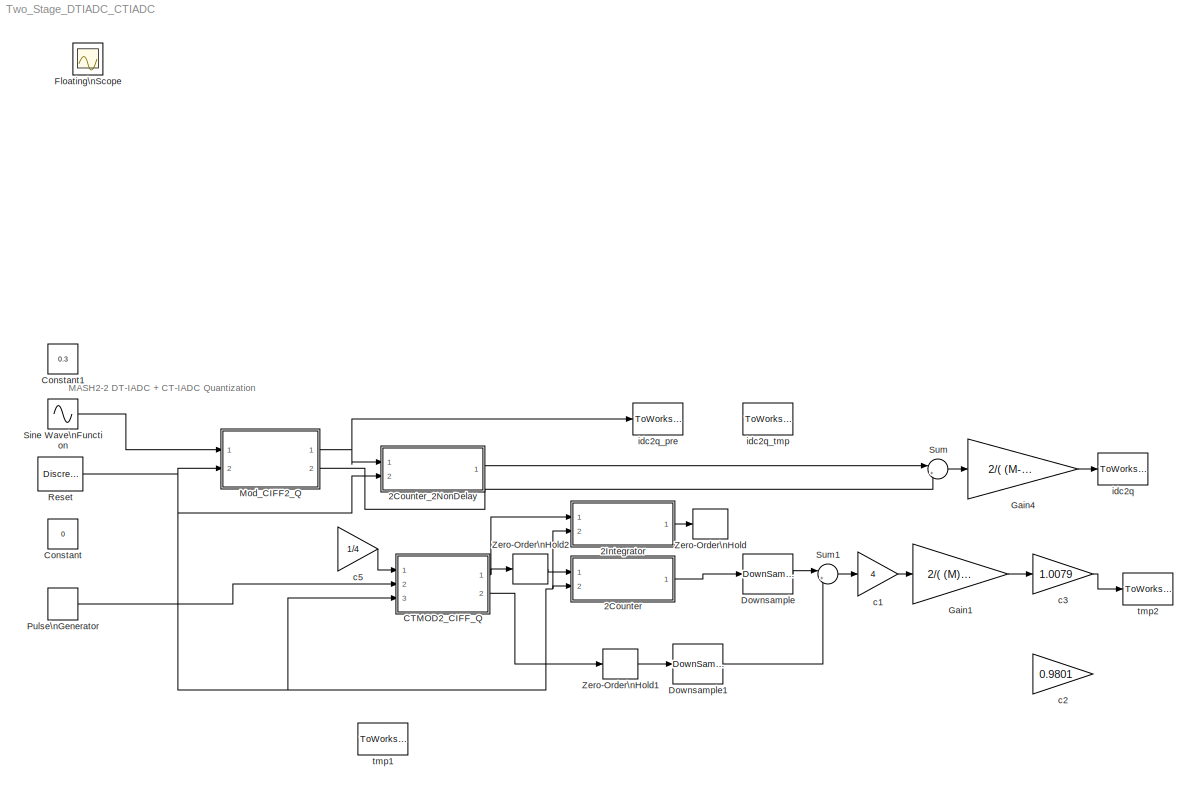
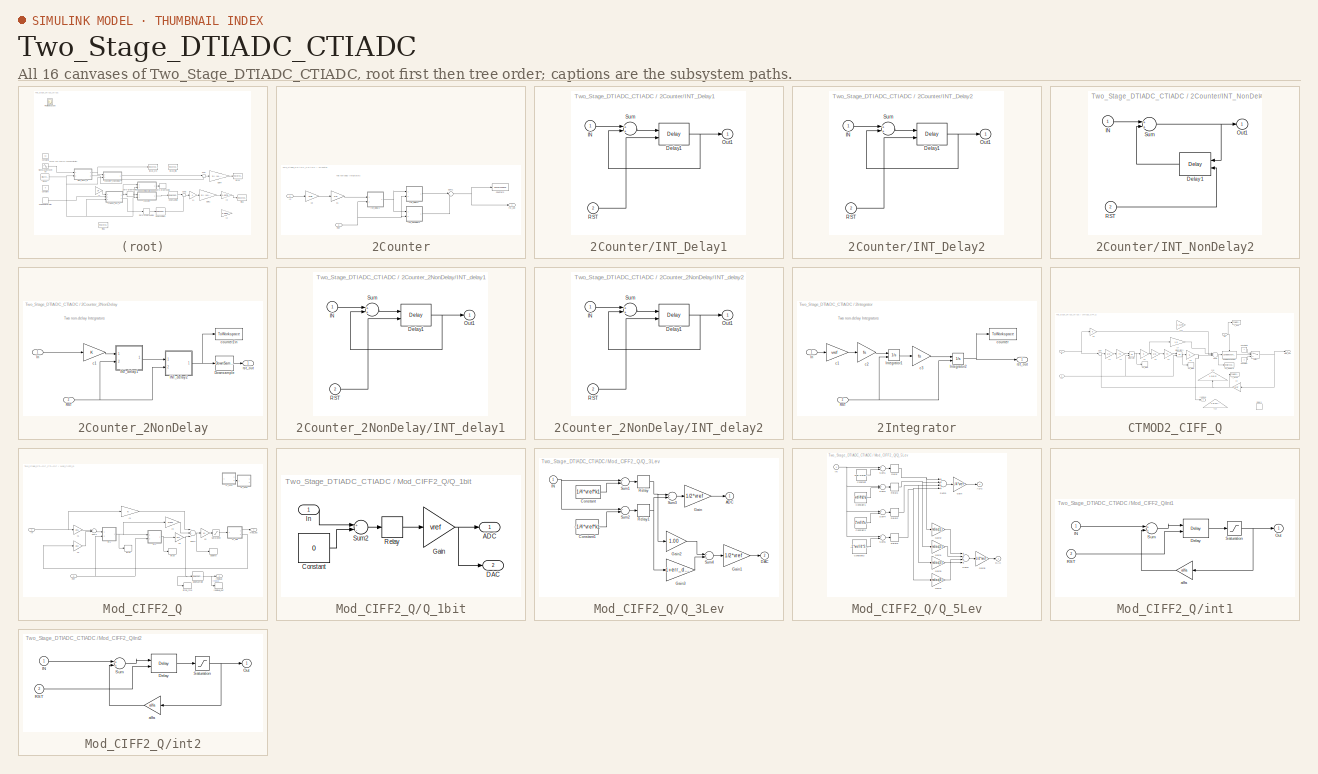
[diagram: thumbnail index - all 16 canvases of the model, root first then tree order]
MODEL Two_Stage_DTIADC_CTIADC
KIND model
BLOCK [SubSystem] 2Counter
  Ports = [2, 1]
  RequestExecContextInheritance = off
  SID = 12904
BLOCK [SubSystem] 2Counter/INT_Delay1
  Ports = [2, 1]
  RequestExecContextInheritance = off
  SID = 12978
BLOCK [Delay] 2Counter/INT_Delay1/Delay1
  DelayLength = 1
  ExternalReset = Rising
  InitialCondition = 0
  InputPortMap = u0,r5
  Ports = [2, 1]
  SID = 12981
  UserData = DataTag0
  UserDataPersistent = on
BLOCK [Inport] 2Counter/INT_Delay1/IN
  IconDisplay = Port number
  SID = 12979
BLOCK [Outport] 2Counter/INT_Delay1/Out1
  IconDisplay = Port number
  SID = 12983
  VectorParamsAs1DForOutWhenUnconnected = off
BLOCK [Inport] 2Counter/INT_Delay1/RST
  IconDisplay = Port number
  Port = 2
  SID = 12980
BLOCK [Sum] 2Counter/INT_Delay1/Sum
  Ports = [2, 1]
  SID = 12982
BLOCK [SubSystem] 2Counter/INT_Delay2
  Ports = [2, 1]
  RequestExecContextInheritance = off
  SID = 12913
BLOCK [Delay] 2Counter/INT_Delay2/Delay1
  DelayLength = 1
  ExternalReset = Rising
  InitialCondition = 0
  InputPortMap = u0,r5
  Ports = [2, 1]
  SID = 12916
  UserData = DataTag1
  UserDataPersistent = on
BLOCK [Inport] 2Counter/INT_Delay2/IN
  IconDisplay = Port number
  SID = 12914
BLOCK [Outport] 2Counter/INT_Delay2/Out1
  IconDisplay = Port number
  SID = 12918
  VectorParamsAs1DForOutWhenUnconnected = off
BLOCK [Inport] 2Counter/INT_Delay2/RST
  IconDisplay = Port number
  Port = 2
  SID = 12915
BLOCK [Sum] 2Counter/INT_Delay2/Sum
  Ports = [2, 1]
  SID = 12917
BLOCK [SubSystem] 2Counter/INT_NonDelay2
  Ports = [2, 1]
  RequestExecContextInheritance = off
  SID = 12919
BLOCK [Delay] 2Counter/INT_NonDelay2/Delay1
  DelayLength = 1
  ExternalReset = Rising
  InitialCondition = 0
  InputPortMap = u0,r5
  Ports = [2, 1]
  SID = 12922
  UserData = DataTag2
  UserDataPersistent = on
BLOCK [Inport] 2Counter/INT_NonDelay2/IN
  IconDisplay = Port number
  SID = 12920
BLOCK [Outport] 2Counter/INT_NonDelay2/Out1
  IconDisplay = Port number
  SID = 12924
  VectorParamsAs1DForOutWhenUnconnected = off
BLOCK [Inport] 2Counter/INT_NonDelay2/RST
  IconDisplay = Port number
  Port = 2
  SID = 12921
BLOCK [Sum] 2Counter/INT_NonDelay2/Sum
  Ports = [2, 1]
  SID = 12923
BLOCK [Inport] 2Counter/In
  IconDisplay = Port number
  SID = 12905
BLOCK [Inport] 2Counter/RST
  IconDisplay = Port number
  Port = 2
  SID = 12906
BLOCK [Sum] 2Counter/Sum1
  IconShape = round
  InputSameDT = off
  Inputs = |++
  OutDataTypeStr = Inherit: Inherit via internal rule
  Ports = [2, 1]
  SID = 12925
  SaturateOnIntegerOverflow = off
BLOCK [Gain] 2Counter/c1
  Gain = 0.5
  SID = 12926
BLOCK [Gain] 2Counter/c2
  Gain = vref
  SID = 12927
BLOCK [ToWorkspace] 2Counter/counter2
  MaxDataPoints = inf
  Ports = [1]
  SID = 12928
  SampleTime = -1
  VariableName = counter2
BLOCK [Outport] 2Counter/rst_out
  IconDisplay = Port number
  SID = 12929
  VectorParamsAs1DForOutWhenUnconnected = off
BLOCK [SubSystem] 2Counter_2NonDelay
  Ports = [2, 1]
  RequestExecContextInheritance = off
  SID = 12296
BLOCK [DownSample] 2Counter_2NonDelay/Downsample
  InputProcessing = Elements as channels (sample based)
  N = OSR
  RateOptions = Allow multirate processing
  SID = 12299
  phase = OSR-1
BLOCK [SubSystem] 2Counter_2NonDelay/INT_delay1
  Ports = [2, 1]
  RequestExecContextInheritance = off
  SID = 12872
BLOCK [Delay] 2Counter_2NonDelay/INT_delay1/Delay1
  DelayLength = 1
  ExternalReset = Rising
  InitialCondition = 0
  InputPortMap = u0,r5
  Ports = [2, 1]
  SID = 12875
  UserData = DataTag3
  UserDataPersistent = on
BLOCK [Inport] 2Counter_2NonDelay/INT_delay1/IN
  IconDisplay = Port number
  SID = 12873
BLOCK [Outport] 2Counter_2NonDelay/INT_delay1/Out1
  IconDisplay = Port number
  SID = 12877
  VectorParamsAs1DForOutWhenUnconnected = off
BLOCK [Inport] 2Counter_2NonDelay/INT_delay1/RST
  IconDisplay = Port number
  Port = 2
  SID = 12874
BLOCK [Sum] 2Counter_2NonDelay/INT_delay1/Sum
  Ports = [2, 1]
  SID = 12876
BLOCK [SubSystem] 2Counter_2NonDelay/INT_delay2
  Ports = [2, 1]
  RequestExecContextInheritance = off
  SID = 12306
BLOCK [Delay] 2Counter_2NonDelay/INT_delay2/Delay1
  DelayLength = 1
  ExternalReset = Rising
  InitialCondition = 0
  InputPortMap = u0,r5
  Ports = [2, 1]
  SID = 12712
  UserData = DataTag4
  UserDataPersistent = on
BLOCK [Inport] 2Counter_2NonDelay/INT_delay2/IN
  IconDisplay = Port number
  SID = 12307
BLOCK [Outport] 2Counter_2NonDelay/INT_delay2/Out1
  IconDisplay = Port number
  SID = 12311
  VectorParamsAs1DForOutWhenUnconnected = off
BLOCK [Inport] 2Counter_2NonDelay/INT_delay2/RST
  IconDisplay = Port number
  Port = 2
  SID = 12308
BLOCK [Sum] 2Counter_2NonDelay/INT_delay2/Sum
  Ports = [2, 1]
  SID = 12310
BLOCK [Inport] 2Counter_2NonDelay/In
  IconDisplay = Port number
  SID = 12297
BLOCK [Inport] 2Counter_2NonDelay/RST
  IconDisplay = Port number
  Port = 2
  SID = 12298
BLOCK [Gain] 2Counter_2NonDelay/c1
  SID = 12312
BLOCK [ToWorkspace] 2Counter_2NonDelay/counter1\n
  MaxDataPoints = inf
  Ports = [1]
  SID = 12616
  SampleTime = -1
  VariableName = counter1
BLOCK [Outport] 2Counter_2NonDelay/rst_out
  IconDisplay = Port number
  SID = 12313
  VectorParamsAs1DForOutWhenUnconnected = off
BLOCK [SubSystem] 2Integrator
  Commented = on
  Ports = [2, 1]
  RequestExecContextInheritance = off
  SID = 12990
BLOCK [Inport] 2Integrator/In
  IconDisplay = Port number
  SID = 12991
BLOCK [Integrator] 2Integrator/Integrator1
  ExternalReset = rising
  Ports = [2, 1]
  SID = 12993
BLOCK [Integrator] 2Integrator/Integrator2
  ExternalReset = rising
  Ports = [2, 1]
  SID = 12994
BLOCK [Inport] 2Integrator/RST
  IconDisplay = Port number
  Port = 2
  SID = 12992
BLOCK [Gain] 2Integrator/c1
  Gain = vref
  SID = 12995
BLOCK [Gain] 2Integrator/c2
  Gain = fs
  SID = 12996
BLOCK [Gain] 2Integrator/c3
  Gain = fs
  SID = 12997
BLOCK [ToWorkspace] 2Integrator/counter
  MaxDataPoints = inf
  Ports = [1]
  SID = 12998
  SampleTime = -1
  VariableName = counter
BLOCK [Outport] 2Integrator/rst_out
  IconDisplay = Port number
  SID = 12999
  VectorParamsAs1DForOutWhenUnconnected = off
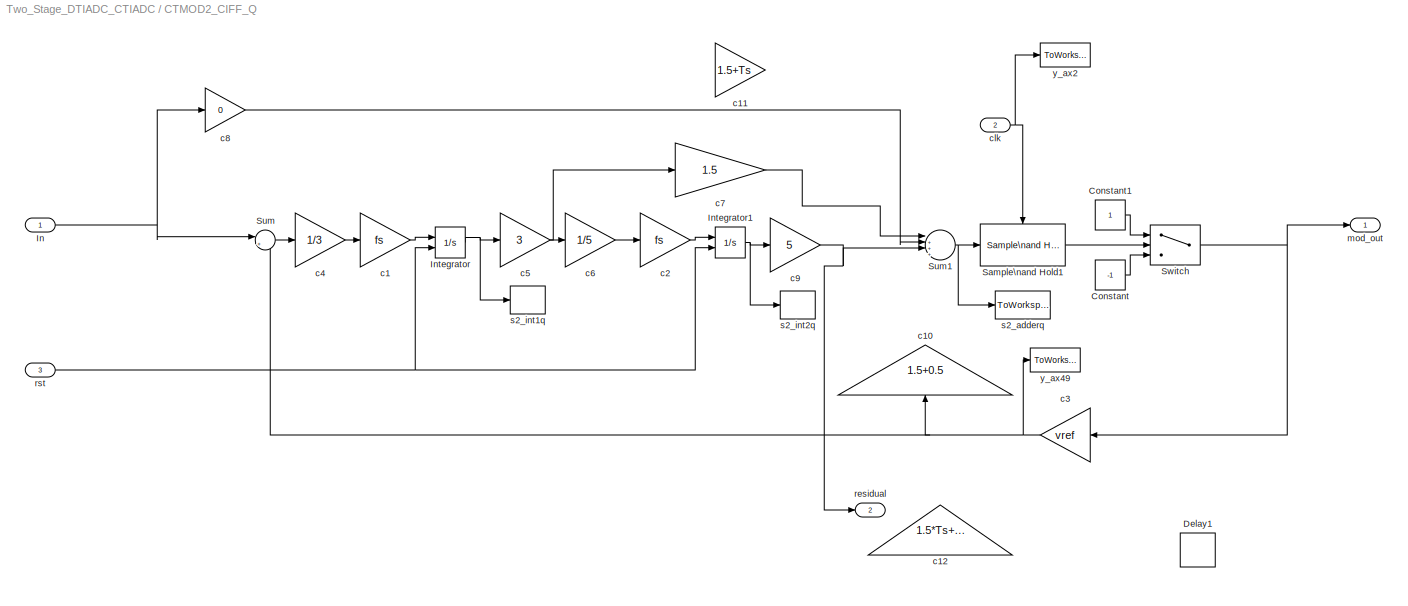
BLOCK [SubSystem] CTMOD2_CIFF_Q
  Ports = [3, 2]
  RequestExecContextInheritance = off
  SID = 12933
BLOCK [Constant] CTMOD2_CIFF_Q/Constant
  SID = 12937
  Value = -1
BLOCK [Constant] CTMOD2_CIFF_Q/Constant1
  SID = 12938
BLOCK [Delay] CTMOD2_CIFF_Q/Delay1
  Commented = on
  DelayLength = 1
  InitialCondition = 0
  InputPortMap = u0
  Ports = [1, 1]
  SID = 12939
  SampleTime = Ts
BLOCK [Inport] CTMOD2_CIFF_Q/In
  IconDisplay = Port number
  SID = 12934
BLOCK [Integrator] CTMOD2_CIFF_Q/Integrator
  ExternalReset = rising
  Ports = [2, 1]
  SID = 12940
BLOCK [Integrator] CTMOD2_CIFF_Q/Integrator1
  ExternalReset = rising
  Ports = [2, 1]
  SID = 12941
BLOCK [Reference] CTMOD2_CIFF_Q/Sample\nand Hold1  REF=dspsigops/Sample\nand Hold
  Ports = [1, 1, 0, 1]
  RTWMemSecDataConstants = Inherit from model
  RTWMemSecDataInternal = Inherit from model
  RTWMemSecDataParameters = Inherit from model
  RTWMemSecFuncExecute = Inherit from model
  RTWMemSecFuncInitTerm = Inherit from model
  SID = 12942
  SourceBlock = dspsigops/Sample\nand Hold
  SourceProductBaseCode = DS
  SourceProductName = DSP System Toolbox
  SourceType = Sample and Hold
  initCond = 0
  latchinput = off
  trig = Rising edge
BLOCK [Sum] CTMOD2_CIFF_Q/Sum
  IconShape = round
  InputSameDT = off
  Inputs = |+-
  OutDataTypeStr = Inherit: Inherit via internal rule
  Ports = [2, 1]
  SID = 12943
  SaturateOnIntegerOverflow = off
BLOCK [Sum] CTMOD2_CIFF_Q/Sum1
  IconShape = round
  InputSameDT = off
  Inputs = |+++-
  OutDataTypeStr = Inherit: Inherit via internal rule
  Ports = [4, 1]
  SID = 12944
  SaturateOnIntegerOverflow = off
BLOCK [Switch] CTMOD2_CIFF_Q/Switch
  Criteria = u2 > Threshold
  InputSameDT = off
  SID = 12945
  SaturateOnIntegerOverflow = off
BLOCK [Gain] CTMOD2_CIFF_Q/c1
  Gain = fs
  SID = 12946
BLOCK [Gain] CTMOD2_CIFF_Q/c10
  Commented = on
  Gain = 1.5+0.5
  SID = 12947
BLOCK [Gain] CTMOD2_CIFF_Q/c11
  Commented = on
  Gain = 1.5+Ts
  SID = 12948
BLOCK [Gain] CTMOD2_CIFF_Q/c12
  Commented = on
  Gain = 1.5*Ts+0.5*Ts*Ts
  SID = 12949
BLOCK [Gain] CTMOD2_CIFF_Q/c2
  Gain = fs
  SID = 12950
BLOCK [Gain] CTMOD2_CIFF_Q/c3
  Gain = vref
  SID = 12951
BLOCK [Gain] CTMOD2_CIFF_Q/c4
  Gain = 1/3
  SID = 12952
BLOCK [Gain] CTMOD2_CIFF_Q/c5
  Gain = 3
  SID = 12953
BLOCK [Gain] CTMOD2_CIFF_Q/c6
  Gain = 1/5
  SID = 12954
BLOCK [Gain] CTMOD2_CIFF_Q/c7
  Gain = 1.5
  SID = 12955
BLOCK [Gain] CTMOD2_CIFF_Q/c8
  Gain = 0
  SID = 12956
BLOCK [Gain] CTMOD2_CIFF_Q/c9
  Gain = 5
  SID = 12957
BLOCK [Inport] CTMOD2_CIFF_Q/clk
  IconDisplay = Port number
  Port = 2
  SID = 12935
BLOCK [Outport] CTMOD2_CIFF_Q/mod_out
  IconDisplay = Port number
  SID = 12963
  VectorParamsAs1DForOutWhenUnconnected = off
BLOCK [Outport] CTMOD2_CIFF_Q/residual
  IconDisplay = Port number
  Port = 2
  SID = 12964
  VectorParamsAs1DForOutWhenUnconnected = off
BLOCK [Inport] CTMOD2_CIFF_Q/rst
  IconDisplay = Port number
  Port = 3
  SID = 12936
BLOCK [ToWorkspace] CTMOD2_CIFF_Q/s2_adderq
  MaxDataPoints = inf
  Ports = [1]
  SID = 12973
  SampleTime = -1
  VariableName = s2_adderq
BLOCK [ToWorkspace] CTMOD2_CIFF_Q/s2_int1q
  MaxDataPoints = inf
  Ports = [1]
  SID = 12971
  SampleTime = -1
  VariableName = s2_int1q
BLOCK [ToWorkspace] CTMOD2_CIFF_Q/s2_int2q
  MaxDataPoints = inf
  Ports = [1]
  SID = 12972
  SampleTime = -1
  VariableName = s2_int2q
BLOCK [ToWorkspace] CTMOD2_CIFF_Q/y_ax2
  MaxDataPoints = inf
  Ports = [1]
  SID = 12961
  SampleTime = Ts/4
  SaveFormat = Structure With Time
  VariableName = y_clk
BLOCK [ToWorkspace] CTMOD2_CIFF_Q/y_ax49
  MaxDataPoints = inf
  Ports = [1]
  SID = 12962
  SampleTime = Ts/4
  SaveFormat = Structure With Time
  VariableName = y_fb
BLOCK [Constant] Constant
  Commented = on
  SID = 12759
  Value = 0
BLOCK [Constant] Constant1
  Commented = on
  SID = 12900
  Value = 0.3
BLOCK [DownSample] Downsample
  InputProcessing = Elements as channels (sample based)
  N = OSR
  RateOptions = Allow multirate processing
  SID = 12931
  phase = OSR-1
BLOCK [DownSample] Downsample1
  Commented = on
  InputProcessing = Elements as channels (sample based)
  N = OSR
  RateOptions = Allow multirate processing
  SID = 12974
  phase = OSR-1
BLOCK [Scope] Floating\nScope
  Floating = off
  IOType = viewer
  NumInputPorts = 1
  Ports = []
  SID = 82
  ScopeSpecificationString = C++SS(StrPVP('Location','[376, 294, 963, 755]'),StrPVP('Open','off'),MxPVP('AxesTitles',54,'struct(''axes1'',''%<SignalLabel>'')'),StrPVP('DataFormat','StructureWithTime'),StrPVP('BlockParamSampleTime','0'),StrPVP('LimitDataPoints','on'),StrPVP('Decimation','1'),StrPVP('BlockParamSampleInput','off'))
BLOCK [Gain] Gain1
  Gain = 2/( (M)*(M+1) )
  OutDataTypeStr = Inherit: Inherit via internal rule
  ParamDataTypeStr = Inherit: Inherit via internal rule
  SID = 13017
  SaturateOnIntegerOverflow = off
BLOCK [Gain] Gain4
  Gain = 2/( (M-1)*(M) )
  OutDataTypeStr = Inherit: Inherit via internal rule
  ParamDataTypeStr = Inherit: Inherit via internal rule
  SID = 11902
  SaturateOnIntegerOverflow = off
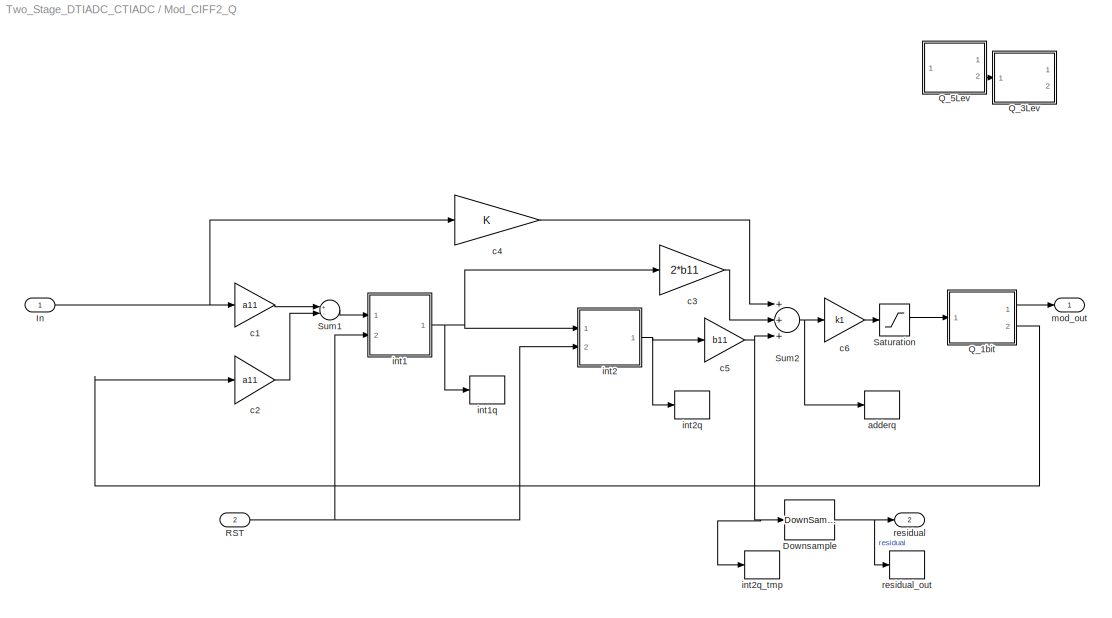
BLOCK [SubSystem] Mod_CIFF2_Q
  Ports = [2, 2]
  RequestExecContextInheritance = off
  SID = 11903
BLOCK [DownSample] Mod_CIFF2_Q/Downsample
  InputProcessing = Elements as channels (sample based)
  N = OSR
  RateOptions = Allow multirate processing
  SID = 12760
  phase = OSR-1
BLOCK [Inport] Mod_CIFF2_Q/In
  IconDisplay = Port number
  SID = 11904
BLOCK [SubSystem] Mod_CIFF2_Q/Q_1bit
  Ports = [1, 2]
  RequestExecContextInheritance = off
  SID = 11919
BLOCK [Outport] Mod_CIFF2_Q/Q_1bit/ADC
  IconDisplay = Port number
  SID = 11925
  VectorParamsAs1DForOutWhenUnconnected = off
BLOCK [Constant] Mod_CIFF2_Q/Q_1bit/Constant
  SID = 11921
  Value = 0
BLOCK [Outport] Mod_CIFF2_Q/Q_1bit/DAC
  IconDisplay = Port number
  Port = 2
  SID = 11926
  VectorParamsAs1DForOutWhenUnconnected = off
BLOCK [Gain] Mod_CIFF2_Q/Q_1bit/Gain
  Gain = vref
  OutDataTypeStr = Inherit: Inherit via internal rule
  ParamDataTypeStr = Inherit: Inherit via internal rule
  SID = 11922
  SaturateOnIntegerOverflow = off
BLOCK [Inport] Mod_CIFF2_Q/Q_1bit/In
  IconDisplay = Port number
  SID = 11920
BLOCK [Relay] Mod_CIFF2_Q/Q_1bit/Relay
  OffOutputValue = -1
  SID = 11923
  SampleTime = Tclk
BLOCK [Sum] Mod_CIFF2_Q/Q_1bit/Sum2
  Inputs = +-
  Ports = [2, 1]
  SID = 11924
BLOCK [SubSystem] Mod_CIFF2_Q/Q_3Lev
  Ports = [1, 2]
  RequestExecContextInheritance = off
  SID = 12583
BLOCK [Outport] Mod_CIFF2_Q/Q_3Lev/ADC
  IconDisplay = Port number
  SID = 12597
  VectorParamsAs1DForOutWhenUnconnected = off
BLOCK [Constant] Mod_CIFF2_Q/Q_3Lev/Constant
  SID = 12585
  Value = 1/4*vref*k1
BLOCK [Constant] Mod_CIFF2_Q/Q_3Lev/Constant1
  SID = 12586
  Value = -1/4*vref*k1
BLOCK [Outport] Mod_CIFF2_Q/Q_3Lev/DAC
  IconDisplay = Port number
  Port = 2
  SID = 12598
  VectorParamsAs1DForOutWhenUnconnected = off
BLOCK [Gain] Mod_CIFF2_Q/Q_3Lev/Gain
  Gain = 1/2*vref
  OutDataTypeStr = Inherit: Inherit via internal rule
  ParamDataTypeStr = Inherit: Inherit via internal rule
  SID = 12587
  SaturateOnIntegerOverflow = off
BLOCK [Gain] Mod_CIFF2_Q/Q_3Lev/Gain1
  Gain = 1/2*vref
  OutDataTypeStr = Inherit: Inherit via internal rule
  ParamDataTypeStr = Inherit: Inherit via internal rule
  SID = 12588
  SaturateOnIntegerOverflow = off
BLOCK [Gain] Mod_CIFF2_Q/Q_3Lev/Gain2
  Gain = 1.00
  OutDataTypeStr = Inherit: Inherit via internal rule
  ParamDataTypeStr = Inherit: Inherit via internal rule
  SID = 12589
  SaturateOnIntegerOverflow = off
BLOCK [Gain] Mod_CIFF2_Q/Q_3Lev/Gain3
  Gain = 1+err_dac
  OutDataTypeStr = Inherit: Inherit via internal rule
  ParamDataTypeStr = Inherit: Inherit via internal rule
  SID = 12590
  SaturateOnIntegerOverflow = off
BLOCK [Inport] Mod_CIFF2_Q/Q_3Lev/IN
  IconDisplay = Port number
  SID = 12584
BLOCK [Relay] Mod_CIFF2_Q/Q_3Lev/Relay
  OffOutputValue = -1
  SID = 12591
  SampleTime = Tclk
BLOCK [Relay] Mod_CIFF2_Q/Q_3Lev/Relay1
  OffOutputValue = -1
  SID = 12592
  SampleTime = Tclk
BLOCK [Sum] Mod_CIFF2_Q/Q_3Lev/Sum1
  Inputs = +-
  Ports = [2, 1]
  SID = 12593
BLOCK [Sum] Mod_CIFF2_Q/Q_3Lev/Sum2
  Inputs = +-
  Ports = [2, 1]
  SID = 12594
BLOCK [Sum] Mod_CIFF2_Q/Q_3Lev/Sum3
  Ports = [2, 1]
  SID = 12595
BLOCK [Sum] Mod_CIFF2_Q/Q_3Lev/Sum4
  Ports = [2, 1]
  SID = 12596
BLOCK [SubSystem] Mod_CIFF2_Q/Q_5Lev
  Ports = [1, 2]
  RequestExecContextInheritance = off
  SID = 12559
BLOCK [Outport] Mod_CIFF2_Q/Q_5Lev/ADC
  IconDisplay = Port number
  SID = 12581
  VectorParamsAs1DForOutWhenUnconnected = off
BLOCK [Constant] Mod_CIFF2_Q/Q_5Lev/Constant
  SID = 12561
  Value = vref/4*3*a1*a2
BLOCK [Constant] Mod_CIFF2_Q/Q_5Lev/Constant1
  SID = 12562
  Value = vref/4*a1*a2
BLOCK [Constant] Mod_CIFF2_Q/Q_5Lev/Constant2
  SID = 12563
  Value = -1*vref/4*a1*a2
BLOCK [Constant] Mod_CIFF2_Q/Q_5Lev/Constant3
  SID = 12564
  Value = -1*vref/4*3*a1*a2
BLOCK [Outport] Mod_CIFF2_Q/Q_5Lev/DAC
  IconDisplay = Port number
  Port = 2
  SID = 12582
  VectorParamsAs1DForOutWhenUnconnected = off
BLOCK [Gain] Mod_CIFF2_Q/Q_5Lev/Gain
  Gain = 1/4*vref
  OutDataTypeStr = Inherit: Inherit via internal rule
  ParamDataTypeStr = Inherit: Inherit via internal rule
  SID = 12565
  SaturateOnIntegerOverflow = off
BLOCK [Gain] Mod_CIFF2_Q/Q_5Lev/Gain1
  Gain = mdac(2)
  OutDataTypeStr = Inherit: Inherit via internal rule
  ParamDataTypeStr = Inherit: Inherit via internal rule
  SID = 12566
  SaturateOnIntegerOverflow = off
BLOCK [Gain] Mod_CIFF2_Q/Q_5Lev/Gain2
  Gain = mdac(1)
  OutDataTypeStr = Inherit: Inherit via internal rule
  ParamDataTypeStr = Inherit: Inherit via internal rule
  SID = 12567
  SaturateOnIntegerOverflow = off
BLOCK [Gain] Mod_CIFF2_Q/Q_5Lev/Gain3
  Gain = mdac(3)
  OutDataTypeStr = Inherit: Inherit via internal rule
  ParamDataTypeStr = Inherit: Inherit via internal rule
  SID = 12568
  SaturateOnIntegerOverflow = off
BLOCK [Gain] Mod_CIFF2_Q/Q_5Lev/Gain4
  Gain = mdac(4)
  OutDataTypeStr = Inherit: Inherit via internal rule
  ParamDataTypeStr = Inherit: Inherit via internal rule
  SID = 12569
  SaturateOnIntegerOverflow = off
BLOCK [Gain] Mod_CIFF2_Q/Q_5Lev/Gain5
  Gain = 1/4*vref
  OutDataTypeStr = Inherit: Inherit via internal rule
  ParamDataTypeStr = Inherit: Inherit via internal rule
  SID = 12570
  SaturateOnIntegerOverflow = off
BLOCK [Inport] Mod_CIFF2_Q/Q_5Lev/IN
  IconDisplay = Port number
  SID = 12560
BLOCK [Relay] Mod_CIFF2_Q/Q_5Lev/Relay
  OffOutputValue = -1
  SID = 12571
  SampleTime = Tclk
BLOCK [Relay] Mod_CIFF2_Q/Q_5Lev/Relay1
  OffOutputValue = -1
  SID = 12572
  SampleTime = Tclk
BLOCK [Relay] Mod_CIFF2_Q/Q_5Lev/Relay2
  OffOutputValue = -1
  SID = 12573
  SampleTime = Tclk
BLOCK [Relay] Mod_CIFF2_Q/Q_5Lev/Relay3
  OffOutputValue = -1
  SID = 12574
  SampleTime = Tclk
BLOCK [Sum] Mod_CIFF2_Q/Q_5Lev/Sum1
  Inputs = +-
  Ports = [2, 1]
  SID = 12575
BLOCK [Sum] Mod_CIFF2_Q/Q_5Lev/Sum2
  Inputs = +-
  Ports = [2, 1]
  SID = 12576
BLOCK [Sum] Mod_CIFF2_Q/Q_5Lev/Sum3
  Inputs = ++++
  Ports = [4, 1]
  SID = 12577
BLOCK [Sum] Mod_CIFF2_Q/Q_5Lev/Sum4
  Inputs = +-
  Ports = [2, 1]
  SID = 12578
BLOCK [Sum] Mod_CIFF2_Q/Q_5Lev/Sum5
  Inputs = +-
  Ports = [2, 1]
  SID = 12579
BLOCK [Sum] Mod_CIFF2_Q/Q_5Lev/Sum6
  Inputs = ++++
  Ports = [4, 1]
  SID = 12580
BLOCK [Inport] Mod_CIFF2_Q/RST
  IconDisplay = Port number
  Port = 2
  SID = 11905
BLOCK [Saturate] Mod_CIFF2_Q/Saturation
  InputPortMap = u0
  LowerLimit = -1*adder_max
  Ports = [1, 1]
  SID = 11967
  UpperLimit = adder_max*1
BLOCK [Sum] Mod_CIFF2_Q/Sum1
  Inputs = +-
  Ports = [2, 1]
  SID = 11968
BLOCK [Sum] Mod_CIFF2_Q/Sum2
  Inputs = +++
  Ports = [3, 1]
  SID = 11969
BLOCK [ToWorkspace] Mod_CIFF2_Q/adderq
  MaxDataPoints = inf
  Ports = [1]
  SID = 12749
  SampleTime = -1
  VariableName = adderq
BLOCK [Gain] Mod_CIFF2_Q/c1
  Gain = a11
  SID = 11970
BLOCK [Gain] Mod_CIFF2_Q/c2
  Gain = a11
  SID = 11971
BLOCK [Gain] Mod_CIFF2_Q/c3
  Gain = 2*b11
  SID = 11972
BLOCK [Gain] Mod_CIFF2_Q/c4
  SID = 11973
BLOCK [Gain] Mod_CIFF2_Q/c5
  Gain = b11
  SID = 11974
BLOCK [Gain] Mod_CIFF2_Q/c6
  Gain = k1
  SID = 11975
BLOCK [SubSystem] Mod_CIFF2_Q/int1
  Ports = [2, 1]
  RequestExecContextInheritance = off
  SID = 12646
BLOCK [Delay] Mod_CIFF2_Q/int1/Delay
  DelayLength = 1
  ExternalReset = Rising
  InitialCondition = 0
  InputPortMap = u0,r5
  Ports = [2, 1]
  SID = 12649
  UserData = DataTag5
  UserDataPersistent = on
BLOCK [Inport] Mod_CIFF2_Q/int1/IN
  IconDisplay = Port number
  SID = 12647
BLOCK [Outport] Mod_CIFF2_Q/int1/Out
  IconDisplay = Port number
  SID = 12653
  VectorParamsAs1DForOutWhenUnconnected = off
BLOCK [Inport] Mod_CIFF2_Q/int1/RST
  IconDisplay = Port number
  Port = 2
  SID = 12648
BLOCK [Saturate] Mod_CIFF2_Q/int1/Saturation
  InputPortMap = u0
  LowerLimit = -1*Amax
  Ports = [1, 1]
  SID = 12650
  UpperLimit = Amax
BLOCK [Sum] Mod_CIFF2_Q/int1/Sum
  Ports = [2, 1]
  SID = 12651
BLOCK [Gain] Mod_CIFF2_Q/int1/alfa
  Gain = alfa
  SID = 12652
BLOCK [ToWorkspace] Mod_CIFF2_Q/int1q
  MaxDataPoints = inf
  Ports = [1]
  SID = 11976
  SampleTime = -1
  VariableName = int1q
BLOCK [SubSystem] Mod_CIFF2_Q/int2
  Ports = [2, 1]
  RequestExecContextInheritance = off
  SID = 12654
BLOCK [Delay] Mod_CIFF2_Q/int2/Delay
  DelayLength = 1
  ExternalReset = Rising
  InitialCondition = 0
  InputPortMap = u0,r5
  Ports = [2, 1]
  SID = 12657
  UserData = DataTag6
  UserDataPersistent = on
BLOCK [Inport] Mod_CIFF2_Q/int2/IN
  IconDisplay = Port number
  SID = 12655
BLOCK [Outport] Mod_CIFF2_Q/int2/Out
  IconDisplay = Port number
  SID = 12661
  VectorParamsAs1DForOutWhenUnconnected = off
BLOCK [Inport] Mod_CIFF2_Q/int2/RST
  IconDisplay = Port number
  Port = 2
  SID = 12656
BLOCK [Saturate] Mod_CIFF2_Q/int2/Saturation
  InputPortMap = u0
  LowerLimit = -1*Amax
  Ports = [1, 1]
  SID = 12658
  UpperLimit = Amax
BLOCK [Sum] Mod_CIFF2_Q/int2/Sum
  Ports = [2, 1]
  SID = 12659
BLOCK [Gain] Mod_CIFF2_Q/int2/alfa
  Gain = alfa
  SID = 12660
BLOCK [ToWorkspace] Mod_CIFF2_Q/int2q
  MaxDataPoints = inf
  Ports = [1]
  SID = 11977
  SampleTime = -1
  VariableName = int2q
BLOCK [ToWorkspace] Mod_CIFF2_Q/int2q_tmp
  MaxDataPoints = inf
  Ports = [1]
  SID = 12871
  SampleTime = -1
  VariableName = int2q_tmp
BLOCK [Outport] Mod_CIFF2_Q/mod_out
  IconDisplay = Port number
  SID = 11988
  VectorParamsAs1DForOutWhenUnconnected = off
BLOCK [Outport] Mod_CIFF2_Q/residual
  IconDisplay = Port number
  Port = 2
  SID = 12761
  VectorParamsAs1DForOutWhenUnconnected = off
BLOCK [ToWorkspace] Mod_CIFF2_Q/residual_out
  MaxDataPoints = inf
  Ports = [1]
  SID = 12846
  SampleTime = -1
  VariableName = residual
BLOCK [DiscretePulseGenerator] Pulse\nGenerator
  Period = Ts
  Ports = [0, 1]
  PulseType = Time based
  PulseWidth = 50
  SID = 12965
BLOCK [DiscretePulseGenerator] Reset
  Period = OSR
  Ports = [0, 1]
  SID = 3
  SampleTime = Tclk
BLOCK [Sin] Sine Wave\nFunction
  Amplitude = vin_amp
  Frequency = fsig*2*pi
  Ports = [0, 1]
  SID = 12750
  SampleTime = Tclk
BLOCK [Sum] Sum
  IconShape = round
  InputSameDT = off
  Inputs = |++
  OutDataTypeStr = Inherit: Inherit via internal rule
  Ports = [2, 1]
  SID = 12869
  SaturateOnIntegerOverflow = off
BLOCK [Sum] Sum1
  IconShape = round
  InputSameDT = off
  Inputs = |++
  OutDataTypeStr = Inherit: Inherit via internal rule
  Ports = [2, 1]
  SID = 12977
  SaturateOnIntegerOverflow = off
BLOCK [ZeroOrderHold] Zero-Order\nHold
  Commented = on
  SID = 13001
  SampleTime = Ts
BLOCK [ZeroOrderHold] Zero-Order\nHold1
  Commented = on
  SID = 12975
  SampleTime = Ts
BLOCK [ZeroOrderHold] Zero-Order\nHold2
  SID = 12969
  SampleTime = Ts
BLOCK [Gain] c1
  Gain = 4
  SID = 12903
BLOCK [Gain] c2
  Commented = on
  Gain = 0.9801
  SID = 13018
BLOCK [Gain] c3
  Gain = 1.0079
  SID = 13019
BLOCK [Gain] c5
  Gain = 1/4
  SID = 12902
BLOCK [ToWorkspace] idc2q
  MaxDataPoints = inf
  Ports = [1]
  SID = 12033
  SampleTime = -1
  VariableName = idc2q
BLOCK [ToWorkspace] idc2q_pre
  MaxDataPoints = inf
  Ports = [1]
  SID = 12740
  SampleTime = -1
  VariableName = idc2q_pre
BLOCK [ToWorkspace] idc2q_tmp
  Commented = on
  MaxDataPoints = inf
  Ports = [1]
  SID = 12870
  SampleTime = -1
  VariableName = idc2q_tmp
BLOCK [ToWorkspace] tmp1
  MaxDataPoints = inf
  Ports = [1]
  SID = 13004
  SampleTime = -1
  VariableName = tmp1
BLOCK [ToWorkspace] tmp2
  MaxDataPoints = inf
  Ports = [1]
  SID = 13003
  SampleTime = -1
  VariableName = tmp2
ANNOTATION (root): MASH2-2 DT-IADC + CT-IADC Quantization
ANNOTATION 2Counter: Two non-delay Integrators
ANNOTATION 2Counter_2NonDelay: Two non-delay Integrators
ANNOTATION 2Integrator: Two non-delay Integrators
NET 2Counter/INT_Delay1/Delay1:1 -> 2Counter/INT_Delay1/Out1:1, 2Counter/INT_Delay1/Sum:2
LINE 2Counter/INT_Delay1/IN:1 -> 2Counter/INT_Delay1/Sum:1
LINE 2Counter/INT_Delay1/RST:1 -> 2Counter/INT_Delay1/Delay1:2
LINE 2Counter/INT_Delay1/Sum:1 -> 2Counter/INT_Delay1/Delay1:1
NET 2Counter/INT_Delay1:1 -> 2Counter/INT_Delay2:1, 2Counter/INT_NonDelay2:1
NET 2Counter/INT_Delay2/Delay1:1 -> 2Counter/INT_Delay2/Out1:1, 2Counter/INT_Delay2/Sum:2
LINE 2Counter/INT_Delay2/IN:1 -> 2Counter/INT_Delay2/Sum:1
LINE 2Counter/INT_Delay2/RST:1 -> 2Counter/INT_Delay2/Delay1:2
LINE 2Counter/INT_Delay2/Sum:1 -> 2Counter/INT_Delay2/Delay1:1
LINE 2Counter/INT_Delay2:1 -> 2Counter/Sum1:1
LINE 2Counter/INT_NonDelay2/Delay1:1 -> 2Counter/INT_NonDelay2/Sum:2
LINE 2Counter/INT_NonDelay2/IN:1 -> 2Counter/INT_NonDelay2/Sum:1
LINE 2Counter/INT_NonDelay2/RST:1 -> 2Counter/INT_NonDelay2/Delay1:2
NET 2Counter/INT_NonDelay2/Sum:1 -> 2Counter/INT_NonDelay2/Delay1:1, 2Counter/INT_NonDelay2/Out1:1
LINE 2Counter/INT_NonDelay2:1 -> 2Counter/Sum1:2
LINE 2Counter/In:1 -> 2Counter/c2:1
NET 2Counter/RST:1 -> 2Counter/INT_Delay1:2, 2Counter/INT_Delay2:2, 2Counter/INT_NonDelay2:2
NET 2Counter/Sum1:1 -> 2Counter/counter2:1, 2Counter/rst_out:1
LINE 2Counter/c1:1 -> 2Counter/INT_Delay1:1
LINE 2Counter/c2:1 -> 2Counter/c1:1
LINE 2Counter:1 -> Downsample:1
LINE 2Counter_2NonDelay/Downsample:1 -> 2Counter_2NonDelay/rst_out:1
NET 2Counter_2NonDelay/INT_delay1/Delay1:1 -> 2Counter_2NonDelay/INT_delay1/Out1:1, 2Counter_2NonDelay/INT_delay1/Sum:2
LINE 2Counter_2NonDelay/INT_delay1/IN:1 -> 2Counter_2NonDelay/INT_delay1/Sum:1
LINE 2Counter_2NonDelay/INT_delay1/RST:1 -> 2Counter_2NonDelay/INT_delay1/Delay1:2
LINE 2Counter_2NonDelay/INT_delay1/Sum:1 -> 2Counter_2NonDelay/INT_delay1/Delay1:1
LINE 2Counter_2NonDelay/INT_delay1:1 -> 2Counter_2NonDelay/INT_delay2:1
NET 2Counter_2NonDelay/INT_delay2/Delay1:1 -> 2Counter_2NonDelay/INT_delay2/Out1:1, 2Counter_2NonDelay/INT_delay2/Sum:2
LINE 2Counter_2NonDelay/INT_delay2/IN:1 -> 2Counter_2NonDelay/INT_delay2/Sum:1
LINE 2Counter_2NonDelay/INT_delay2/RST:1 -> 2Counter_2NonDelay/INT_delay2/Delay1:2
LINE 2Counter_2NonDelay/INT_delay2/Sum:1 -> 2Counter_2NonDelay/INT_delay2/Delay1:1
NET 2Counter_2NonDelay/INT_delay2:1 -> 2Counter_2NonDelay/Downsample:1, 2Counter_2NonDelay/counter1\n:1
LINE 2Counter_2NonDelay/In:1 -> 2Counter_2NonDelay/c1:1
NET 2Counter_2NonDelay/RST:1 -> 2Counter_2NonDelay/INT_delay1:2, 2Counter_2NonDelay/INT_delay2:2
LINE 2Counter_2NonDelay/c1:1 -> 2Counter_2NonDelay/INT_delay1:1
LINE 2Counter_2NonDelay:1 -> Sum:1
LINE 2Integrator/In:1 -> 2Integrator/c1:1
LINE 2Integrator/Integrator1:1 -> 2Integrator/c3:1
NET 2Integrator/Integrator2:1 -> 2Integrator/counter:1, 2Integrator/rst_out:1
NET 2Integrator/RST:1 -> 2Integrator/Integrator1:2, 2Integrator/Integrator2:2
LINE 2Integrator/c1:1 -> 2Integrator/c2:1
LINE 2Integrator/c2:1 -> 2Integrator/Integrator1:1
LINE 2Integrator/c3:1 -> 2Integrator/Integrator2:1
LINE 2Integrator:1 -> Zero-Order\nHold:1
LINE CTMOD2_CIFF_Q/Constant1:1 -> CTMOD2_CIFF_Q/Switch:1
LINE CTMOD2_CIFF_Q/Constant:1 -> CTMOD2_CIFF_Q/Switch:3
NET CTMOD2_CIFF_Q/In:1 -> CTMOD2_CIFF_Q/Sum:1, CTMOD2_CIFF_Q/c8:1
NET CTMOD2_CIFF_Q/Integrator1:1 -> CTMOD2_CIFF_Q/c9:1, CTMOD2_CIFF_Q/s2_int2q:1
NET CTMOD2_CIFF_Q/Integrator:1 -> CTMOD2_CIFF_Q/c5:1, CTMOD2_CIFF_Q/s2_int1q:1
LINE CTMOD2_CIFF_Q/Sample\nand Hold1:1 -> CTMOD2_CIFF_Q/Switch:2
NET CTMOD2_CIFF_Q/Sum1:1 -> CTMOD2_CIFF_Q/Sample\nand Hold1:1, CTMOD2_CIFF_Q/s2_adderq:1
LINE CTMOD2_CIFF_Q/Sum:1 -> CTMOD2_CIFF_Q/c4:1
NET CTMOD2_CIFF_Q/Switch:1 -> CTMOD2_CIFF_Q/c3:1, CTMOD2_CIFF_Q/mod_out:1
LINE CTMOD2_CIFF_Q/c1:1 -> CTMOD2_CIFF_Q/Integrator:1
LINE CTMOD2_CIFF_Q/c2:1 -> CTMOD2_CIFF_Q/Integrator1:1
NET CTMOD2_CIFF_Q/c3:1 -> CTMOD2_CIFF_Q/Sum:2, CTMOD2_CIFF_Q/c10:1, CTMOD2_CIFF_Q/y_ax49:1
LINE CTMOD2_CIFF_Q/c4:1 -> CTMOD2_CIFF_Q/c1:1
NET CTMOD2_CIFF_Q/c5:1 -> CTMOD2_CIFF_Q/c6:1, CTMOD2_CIFF_Q/c7:1
LINE CTMOD2_CIFF_Q/c6:1 -> CTMOD2_CIFF_Q/c2:1
LINE CTMOD2_CIFF_Q/c7:1 -> CTMOD2_CIFF_Q/Sum1:1
LINE CTMOD2_CIFF_Q/c8:1 -> CTMOD2_CIFF_Q/Sum1:2
NET CTMOD2_CIFF_Q/c9:1 -> CTMOD2_CIFF_Q/Sum1:3, CTMOD2_CIFF_Q/residual:1
NET CTMOD2_CIFF_Q/clk:1 -> CTMOD2_CIFF_Q/Sample\nand Hold1:trigger, CTMOD2_CIFF_Q/y_ax2:1
NET CTMOD2_CIFF_Q/rst:1 -> CTMOD2_CIFF_Q/Integrator1:2, CTMOD2_CIFF_Q/Integrator:2
NET CTMOD2_CIFF_Q:1 -> 2Integrator:1, Zero-Order\nHold2:1
LINE CTMOD2_CIFF_Q:2 -> Zero-Order\nHold1:1
LINE Downsample1:1 -> Sum1:2
LINE Downsample:1 -> Sum1:1
LINE Gain1:1 -> c3:1
LINE Gain4:1 -> idc2q:1
NET Mod_CIFF2_Q/Downsample:1 -> Mod_CIFF2_Q/residual:1, Mod_CIFF2_Q/residual_out:1
NET Mod_CIFF2_Q/In:1 -> Mod_CIFF2_Q/c1:1, Mod_CIFF2_Q/c4:1
LINE Mod_CIFF2_Q/Q_1bit/Constant:1 -> Mod_CIFF2_Q/Q_1bit/Sum2:2
NET Mod_CIFF2_Q/Q_1bit/Gain:1 -> Mod_CIFF2_Q/Q_1bit/ADC:1, Mod_CIFF2_Q/Q_1bit/DAC:1
LINE Mod_CIFF2_Q/Q_1bit/In:1 -> Mod_CIFF2_Q/Q_1bit/Sum2:1
LINE Mod_CIFF2_Q/Q_1bit/Relay:1 -> Mod_CIFF2_Q/Q_1bit/Gain:1
LINE Mod_CIFF2_Q/Q_1bit/Sum2:1 -> Mod_CIFF2_Q/Q_1bit/Relay:1
LINE Mod_CIFF2_Q/Q_1bit:1 -> Mod_CIFF2_Q/mod_out:1
LINE Mod_CIFF2_Q/Q_1bit:2 -> Mod_CIFF2_Q/c2:1
LINE Mod_CIFF2_Q/Q_3Lev/Constant1:1 -> Mod_CIFF2_Q/Q_3Lev/Sum2:2
LINE Mod_CIFF2_Q/Q_3Lev/Constant:1 -> Mod_CIFF2_Q/Q_3Lev/Sum1:2
LINE Mod_CIFF2_Q/Q_3Lev/Gain1:1 -> Mod_CIFF2_Q/Q_3Lev/DAC:1
LINE Mod_CIFF2_Q/Q_3Lev/Gain2:1 -> Mod_CIFF2_Q/Q_3Lev/Sum4:1
LINE Mod_CIFF2_Q/Q_3Lev/Gain3:1 -> Mod_CIFF2_Q/Q_3Lev/Sum4:2
LINE Mod_CIFF2_Q/Q_3Lev/Gain:1 -> Mod_CIFF2_Q/Q_3Lev/ADC:1
NET Mod_CIFF2_Q/Q_3Lev/IN:1 -> Mod_CIFF2_Q/Q_3Lev/Sum1:1, Mod_CIFF2_Q/Q_3Lev/Sum2:1
NET Mod_CIFF2_Q/Q_3Lev/Relay1:1 -> Mod_CIFF2_Q/Q_3Lev/Gain3:1, Mod_CIFF2_Q/Q_3Lev/Sum3:2
NET Mod_CIFF2_Q/Q_3Lev/Relay:1 -> Mod_CIFF2_Q/Q_3Lev/Gain2:1, Mod_CIFF2_Q/Q_3Lev/Sum3:1
LINE Mod_CIFF2_Q/Q_3Lev/Sum1:1 -> Mod_CIFF2_Q/Q_3Lev/Relay:1
LINE Mod_CIFF2_Q/Q_3Lev/Sum2:1 -> Mod_CIFF2_Q/Q_3Lev/Relay1:1
LINE Mod_CIFF2_Q/Q_3Lev/Sum3:1 -> Mod_CIFF2_Q/Q_3Lev/Gain:1
LINE Mod_CIFF2_Q/Q_3Lev/Sum4:1 -> Mod_CIFF2_Q/Q_3Lev/Gain1:1
LINE Mod_CIFF2_Q/Q_5Lev/Constant1:1 -> Mod_CIFF2_Q/Q_5Lev/Sum2:2
LINE Mod_CIFF2_Q/Q_5Lev/Constant2:1 -> Mod_CIFF2_Q/Q_5Lev/Sum4:2
LINE Mod_CIFF2_Q/Q_5Lev/Constant3:1 -> Mod_CIFF2_Q/Q_5Lev/Sum5:2
LINE Mod_CIFF2_Q/Q_5Lev/Constant:1 -> Mod_CIFF2_Q/Q_5Lev/Sum1:2
LINE Mod_CIFF2_Q/Q_5Lev/Gain1:1 -> Mod_CIFF2_Q/Q_5Lev/Sum6:2
LINE Mod_CIFF2_Q/Q_5Lev/Gain2:1 -> Mod_CIFF2_Q/Q_5Lev/Sum6:1
LINE Mod_CIFF2_Q/Q_5Lev/Gain3:1 -> Mod_CIFF2_Q/Q_5Lev/Sum6:3
LINE Mod_CIFF2_Q/Q_5Lev/Gain4:1 -> Mod_CIFF2_Q/Q_5Lev/Sum6:4
LINE Mod_CIFF2_Q/Q_5Lev/Gain5:1 -> Mod_CIFF2_Q/Q_5Lev/DAC:1
LINE Mod_CIFF2_Q/Q_5Lev/Gain:1 -> Mod_CIFF2_Q/Q_5Lev/ADC:1
NET Mod_CIFF2_Q/Q_5Lev/IN:1 -> Mod_CIFF2_Q/Q_5Lev/Sum1:1, Mod_CIFF2_Q/Q_5Lev/Sum2:1, Mod_CIFF2_Q/Q_5Lev/Sum4:1, Mod_CIFF2_Q/Q_5Lev/Sum5:1
NET Mod_CIFF2_Q/Q_5Lev/Relay1:1 -> Mod_CIFF2_Q/Q_5Lev/Gain1:1, Mod_CIFF2_Q/Q_5Lev/Sum3:2
NET Mod_CIFF2_Q/Q_5Lev/Relay2:1 -> Mod_CIFF2_Q/Q_5Lev/Gain3:1, Mod_CIFF2_Q/Q_5Lev/Sum3:3
NET Mod_CIFF2_Q/Q_5Lev/Relay3:1 -> Mod_CIFF2_Q/Q_5Lev/Gain4:1, Mod_CIFF2_Q/Q_5Lev/Sum3:4
NET Mod_CIFF2_Q/Q_5Lev/Relay:1 -> Mod_CIFF2_Q/Q_5Lev/Gain2:1, Mod_CIFF2_Q/Q_5Lev/Sum3:1
LINE Mod_CIFF2_Q/Q_5Lev/Sum1:1 -> Mod_CIFF2_Q/Q_5Lev/Relay:1
LINE Mod_CIFF2_Q/Q_5Lev/Sum2:1 -> Mod_CIFF2_Q/Q_5Lev/Relay1:1
LINE Mod_CIFF2_Q/Q_5Lev/Sum3:1 -> Mod_CIFF2_Q/Q_5Lev/Gain:1
LINE Mod_CIFF2_Q/Q_5Lev/Sum4:1 -> Mod_CIFF2_Q/Q_5Lev/Relay2:1
LINE Mod_CIFF2_Q/Q_5Lev/Sum5:1 -> Mod_CIFF2_Q/Q_5Lev/Relay3:1
LINE Mod_CIFF2_Q/Q_5Lev/Sum6:1 -> Mod_CIFF2_Q/Q_5Lev/Gain5:1
LINE Mod_CIFF2_Q/Q_5Lev:2 -> Mod_CIFF2_Q/Q_3Lev:1
NET Mod_CIFF2_Q/RST:1 -> Mod_CIFF2_Q/int1:2, Mod_CIFF2_Q/int2:2
LINE Mod_CIFF2_Q/Saturation:1 -> Mod_CIFF2_Q/Q_1bit:1
LINE Mod_CIFF2_Q/Sum1:1 -> Mod_CIFF2_Q/int1:1
NET Mod_CIFF2_Q/Sum2:1 -> Mod_CIFF2_Q/adderq:1, Mod_CIFF2_Q/c6:1
LINE Mod_CIFF2_Q/c1:1 -> Mod_CIFF2_Q/Sum1:1
LINE Mod_CIFF2_Q/c2:1 -> Mod_CIFF2_Q/Sum1:2
LINE Mod_CIFF2_Q/c3:1 -> Mod_CIFF2_Q/Sum2:2
LINE Mod_CIFF2_Q/c4:1 -> Mod_CIFF2_Q/Sum2:1
NET Mod_CIFF2_Q/c5:1 -> Mod_CIFF2_Q/Downsample:1, Mod_CIFF2_Q/Sum2:3, Mod_CIFF2_Q/int2q_tmp:1
LINE Mod_CIFF2_Q/c6:1 -> Mod_CIFF2_Q/Saturation:1
LINE Mod_CIFF2_Q/int1/Delay:1 -> Mod_CIFF2_Q/int1/Saturation:1
LINE Mod_CIFF2_Q/int1/IN:1 -> Mod_CIFF2_Q/int1/Sum:1
LINE Mod_CIFF2_Q/int1/RST:1 -> Mod_CIFF2_Q/int1/Delay:2
NET Mod_CIFF2_Q/int1/Saturation:1 -> Mod_CIFF2_Q/int1/Out:1, Mod_CIFF2_Q/int1/alfa:1
LINE Mod_CIFF2_Q/int1/Sum:1 -> Mod_CIFF2_Q/int1/Delay:1
LINE Mod_CIFF2_Q/int1/alfa:1 -> Mod_CIFF2_Q/int1/Sum:2
NET Mod_CIFF2_Q/int1:1 -> Mod_CIFF2_Q/c3:1, Mod_CIFF2_Q/int1q:1, Mod_CIFF2_Q/int2:1
LINE Mod_CIFF2_Q/int2/Delay:1 -> Mod_CIFF2_Q/int2/Saturation:1
LINE Mod_CIFF2_Q/int2/IN:1 -> Mod_CIFF2_Q/int2/Sum:1
LINE Mod_CIFF2_Q/int2/RST:1 -> Mod_CIFF2_Q/int2/Delay:2
NET Mod_CIFF2_Q/int2/Saturation:1 -> Mod_CIFF2_Q/int2/Out:1, Mod_CIFF2_Q/int2/alfa:1
LINE Mod_CIFF2_Q/int2/Sum:1 -> Mod_CIFF2_Q/int2/Delay:1
LINE Mod_CIFF2_Q/int2/alfa:1 -> Mod_CIFF2_Q/int2/Sum:2
NET Mod_CIFF2_Q/int2:1 -> Mod_CIFF2_Q/c5:1, Mod_CIFF2_Q/int2q:1
NET Mod_CIFF2_Q:1 -> 2Counter_2NonDelay:1, idc2q_pre:1
LINE Mod_CIFF2_Q:2 -> Sum:2
LINE Pulse\nGenerator:1 -> CTMOD2_CIFF_Q:2
NET Reset:1 -> 2Counter:2, 2Counter_2NonDelay:2, 2Integrator:2, CTMOD2_CIFF_Q:3, Mod_CIFF2_Q:2
LINE Sine Wave\nFunction:1 -> Mod_CIFF2_Q:1
LINE Sum1:1 -> c1:1
LINE Sum:1 -> Gain4:1
LINE Zero-Order\nHold1:1 -> Downsample1:1
LINE Zero-Order\nHold2:1 -> 2Counter:1
LINE c1:1 -> Gain1:1
LINE c3:1 -> tmp2:1
LINE c5:1 -> CTMOD2_CIFF_Q:1
note: NET lines group one-source signal fan-out (src -> all destinations, sorted); 1:1 wires keep LINE
